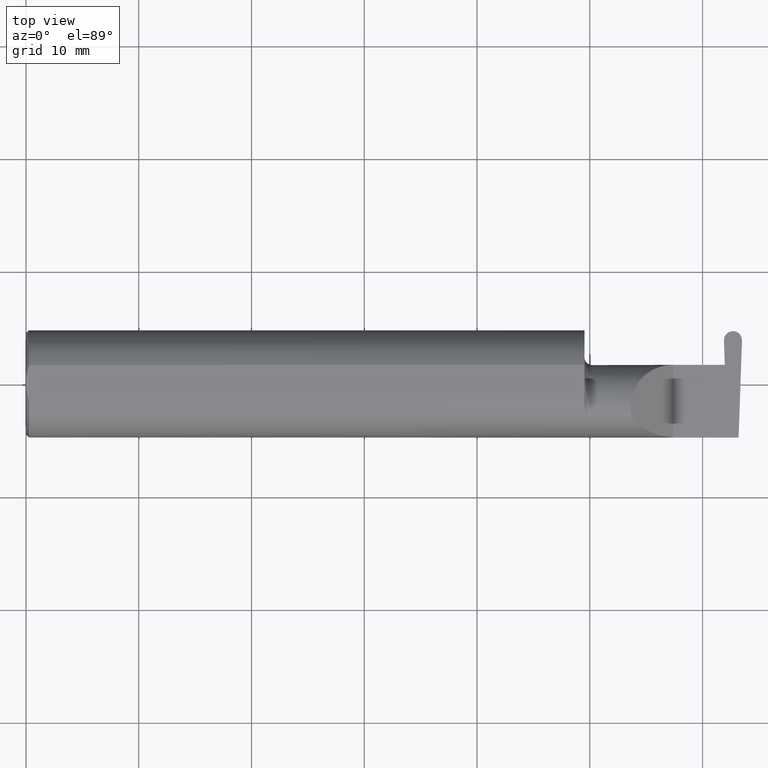
[diagram: clean part render]
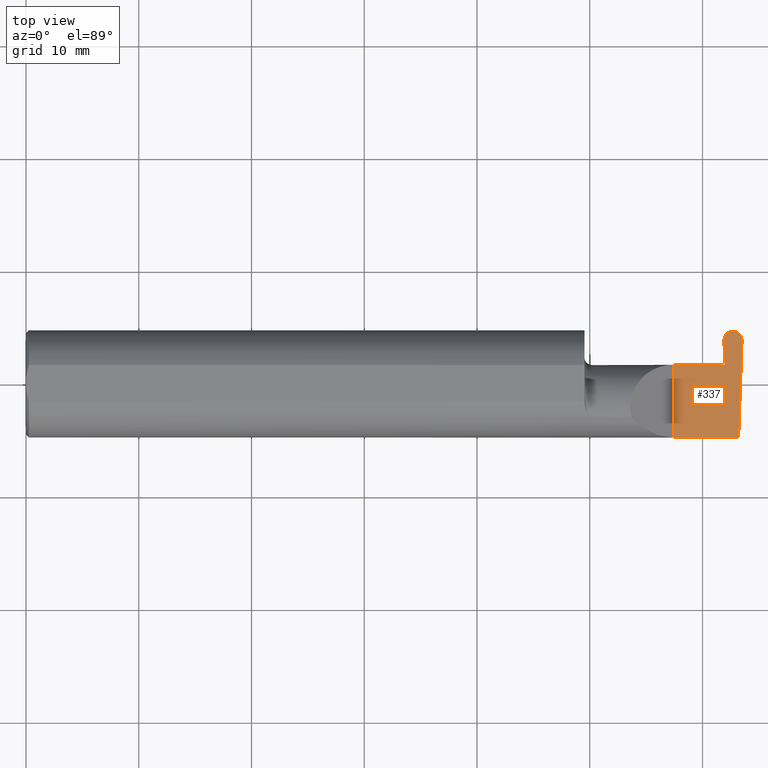
[diagram: same view with one face highlighted and labeled with its STEP entity id]
A machine part, top view. The second image highlights one B-rep face of the part: STEP entity #337.
In plain terms, the highlighted planar face has unit normal (-0, 0, -1).
Its self-contained STEP definition (entity closure, byte-faithful):
#10 = VERTEX_POINT ( 'NONE', #521 ) ;
#11 = DIRECTION ( 'NONE',  ( -1.000000000000000000, 0.000000000000000000, 1.224646799147353947E-16 ) ) ;
#13 = EDGE_CURVE ( 'NONE', #59, #550, #329, .T. ) ;
#14 = VERTEX_POINT ( 'NONE', #621 ) ;
#17 = DIRECTION ( 'NONE',  ( -1.000000000000000000, -0.000000000000000000, -0.000000000000000000 ) ) ;
#30 = LINE ( 'NONE', #535, #275 ) ;
#38 = CARTESIAN_POINT ( 'NONE',  ( 2.449270737010766030, 0.1846499999999998975, 6.213428064161130250E-18 ) ) ;
#51 = CARTESIAN_POINT ( 'NONE',  ( 2.439859874782298377, 0.06664999999999998703, 0.000000000000000000 ) ) ;
#54 = VECTOR ( 'NONE', #686, 39.37007874015748143 ) ;
#59 = VERTEX_POINT ( 'NONE', #78 ) ;
#70 = EDGE_LOOP ( 'NONE', ( #204, #267, #380, #92, #669, #473, #449, #652, #194 ) ) ;
#71 = CARTESIAN_POINT ( 'NONE',  ( 2.500000000000000000, -0.2500000000000000555, 0.000000000000000000 ) ) ;
#78 = CARTESIAN_POINT ( 'NONE',  ( 2.499932917084233264, 0.1506083980881225692, 0.000000000000000000 ) ) ;
#84 = CARTESIAN_POINT ( 'NONE',  ( 2.500625205974851273, 0.1704329581048291409, -1.247844596711687595E-17 ) ) ;
#92 = ORIENTED_EDGE ( 'NONE', *, *, #143, .F. ) ;
#97 = CARTESIAN_POINT ( 'NONE',  ( 2.488131149766799943, -0.1873499999999999888, 0.000000000000000000 ) ) ;
#120 = CARTESIAN_POINT ( 'NONE',  ( 2.499980768683121024, 0.1519786885938757826, 0.000000000000000000 ) ) ;
#130 = CARTESIAN_POINT ( 'NONE',  ( 2.499932917084233264, 0.1506083980881225692, 0.000000000000000000 ) ) ;
#143 = EDGE_CURVE ( 'NONE', #14, #332, #244, .T. ) ;
#147 = VECTOR ( 'NONE', #17, 39.37007874015748143 ) ;
#150 = CARTESIAN_POINT ( 'NONE',  ( 2.468139380300150343, 0.1846500000000000363, 0.000000000000000000 ) ) ;
#158 = EDGE_CURVE ( 'NONE', #540, #240, #225, .T. ) ;
#164 = EDGE_CURVE ( 'NONE', #332, #240, #30, .T. ) ;
#166 = DIRECTION ( 'NONE',  ( -0.03489949670249308661, -0.9993908270190960952, 0.000000000000000000 ) ) ;
#176 = VERTEX_POINT ( 'NONE', #97 ) ;
#177 = LINE ( 'NONE', #120, #552 ) ;
#194 = ORIENTED_EDGE ( 'NONE', *, *, #13, .T. ) ;
#204 = ORIENTED_EDGE ( 'NONE', *, *, #496, .F. ) ;
#207 = LINE ( 'NONE', #539, #147 ) ;
#224 = DIRECTION ( 'NONE',  ( 1.000000000000000000, 3.506966766154694863E-17, 0.000000000000000000 ) ) ;
#225 =( BOUNDED_CURVE ( )  B_SPLINE_CURVE ( 3, ( #150, #38, #527, #694 ),
 .UNSPECIFIED., .F., .F. ) 
 B_SPLINE_CURVE_WITH_KNOTS ( ( 4, 4 ),
 ( 3.057488531086369754, 4.656081685705084183 ),
 .UNSPECIFIED. ) 
 CURVE ( )  GEOMETRIC_REPRESENTATION_ITEM ( )  RATIONAL_B_SPLINE_CURVE ( ( 1.000000000000000000, 0.7981407609938104830, 0.7981407609938104830, 1.000000000000000000 ) ) 
 REPRESENTATION_ITEM ( '' )  );
#240 = VERTEX_POINT ( 'NONE', #579 ) ;
#242 = DIRECTION ( 'NONE',  ( -0.03489949670249346131, 0.9993908270190959842, -0.000000000000000000 ) ) ;
#244 = LINE ( 'NONE', #474, #620 ) ;
#246 = LINE ( 'NONE', #513, #54 ) ;
#261 = DIRECTION ( 'NONE',  ( -1.224646799147353947E-16, 0.000000000000000000, -1.000000000000000000 ) ) ;
#262 = VECTOR ( 'NONE', #224, 39.37007874015748143 ) ;
#267 = ORIENTED_EDGE ( 'NONE', *, *, #158, .T. ) ;
#275 = VECTOR ( 'NONE', #242, 39.37007874015748143 ) ;
#292 = EDGE_CURVE ( 'NONE', #10, #14, #538, .T. ) ;
#293 = VERTEX_POINT ( 'NONE', #488 ) ;
#295 = VECTOR ( 'NONE', #347, 39.37007874015748143 ) ;
#297 = CARTESIAN_POINT ( 'NONE',  ( 2.468721519699850209, 0.1846500000000000363, 0.000000000000000000 ) ) ;
#298 = LINE ( 'NONE', #453, #295 ) ;
#307 = AXIS2_PLACEMENT_3D ( 'NONE', #71, #261, #11 ) ;
#325 = EDGE_CURVE ( 'NONE', #59, #176, #177, .T. ) ;
#329 =( BOUNDED_CURVE ( )  B_SPLINE_CURVE ( 3, ( #130, #84, #672, #297 ),
 .UNSPECIFIED., .F., .F. ) 
 B_SPLINE_CURVE_WITH_KNOTS ( ( 4, 4 ),
 ( 1.627103621474503159, 3.225696776093215590 ),
 .UNSPECIFIED. ) 
 CURVE ( )  GEOMETRIC_REPRESENTATION_ITEM ( )  RATIONAL_B_SPLINE_CURVE ( ( 1.000000000000000000, 0.7981407609938111491, 0.7981407609938111491, 1.000000000000000000 ) ) 
 REPRESENTATION_ITEM ( '' )  );
#332 = VERTEX_POINT ( 'NONE', #51 ) ;
#337 = ADVANCED_FACE ( 'NONE', ( #611 ), #707, .F. ) ;
#347 = DIRECTION ( 'NONE',  ( 1.000000000000000000, -0.000000000000000000, -0.000000000000000000 ) ) ;
#351 = CARTESIAN_POINT ( 'NONE',  ( 2.468721519699850209, 0.1846500000000000363, 0.000000000000000000 ) ) ;
#380 = ORIENTED_EDGE ( 'NONE', *, *, #164, .F. ) ;
#390 = CARTESIAN_POINT ( 'NONE',  ( 1.949999999999999956, 0.06665000000000001479, 6.735557395310446214E-17 ) ) ;
#449 = ORIENTED_EDGE ( 'NONE', *, *, #675, .F. ) ;
#453 = CARTESIAN_POINT ( 'NONE',  ( -0.001039370078740541395, 0.1846500000000000363, 0.000000000000000000 ) ) ;
#473 = ORIENTED_EDGE ( 'NONE', *, *, #479, .F. ) ;
#474 = CARTESIAN_POINT ( 'NONE',  ( 2.439859874782298377, 0.06664999999999998703, 0.000000000000000000 ) ) ;
#479 = EDGE_CURVE ( 'NONE', #293, #10, #246, .T. ) ;
#488 = CARTESIAN_POINT ( 'NONE',  ( 2.260000000000000231, -0.1873499999999999888, 2.939152317953647352E-17 ) ) ;
#496 = EDGE_CURVE ( 'NONE', #540, #550, #298, .T. ) ;
#513 = CARTESIAN_POINT ( 'NONE',  ( 2.260000000000000231, -0.2500000000000000555, 2.939152317953647352E-17 ) ) ;
#521 = CARTESIAN_POINT ( 'NONE',  ( 2.260000000000000231, 0.06665000000000001479, 6.735557395310446214E-17 ) ) ;
#526 = CARTESIAN_POINT ( 'NONE',  ( 2.468139380300150343, 0.1846500000000000363, 0.000000000000000000 ) ) ;
#527 = CARTESIAN_POINT ( 'NONE',  ( 2.436235694025149279, 0.1704329581048291409, 7.809760431069554296E-18 ) ) ;
#535 = CARTESIAN_POINT ( 'NONE',  ( 2.436880131316879083, 0.1519786885938757270, 0.000000000000000000 ) ) ;
#538 = LINE ( 'NONE', #390, #262 ) ;
#539 = CARTESIAN_POINT ( 'NONE',  ( 3.749399456654646757E-32, -0.1873499999999999610, 3.061616997868383634E-16 ) ) ;
#540 = VERTEX_POINT ( 'NONE', #526 ) ;
#550 = VERTEX_POINT ( 'NONE', #351 ) ;
#552 = VECTOR ( 'NONE', #166, 39.37007874015747433 ) ;
#579 = CARTESIAN_POINT ( 'NONE',  ( 2.436927982915767288, 0.1506083980881225137, 0.000000000000000000 ) ) ;
#588 = DIRECTION ( 'NONE',  ( 1.000000000000000000, 7.488084056613327882E-15, -0.000000000000000000 ) ) ;
#611 = FACE_OUTER_BOUND ( 'NONE', #70, .T. ) ;
#620 = VECTOR ( 'NONE', #588, 39.37007874015748143 ) ;
#621 = CARTESIAN_POINT ( 'NONE',  ( 2.430739223982273156, 0.06664999999999991764, 0.000000000000000000 ) ) ;
#652 = ORIENTED_EDGE ( 'NONE', *, *, #325, .F. ) ;
#669 = ORIENTED_EDGE ( 'NONE', *, *, #292, .F. ) ;
#672 = CARTESIAN_POINT ( 'NONE',  ( 2.487590162989234077, 0.1846499999999998698, -1.088211360020844806E-17 ) ) ;
#675 = EDGE_CURVE ( 'NONE', #176, #293, #207, .T. ) ;
#686 = DIRECTION ( 'NONE',  ( -0.000000000000000000, 1.000000000000000000, -0.000000000000000000 ) ) ;
#694 = CARTESIAN_POINT ( 'NONE',  ( 2.436927982915767288, 0.1506083980881225137, 0.000000000000000000 ) ) ;
#707 = PLANE ( 'NONE',  #307 ) ;